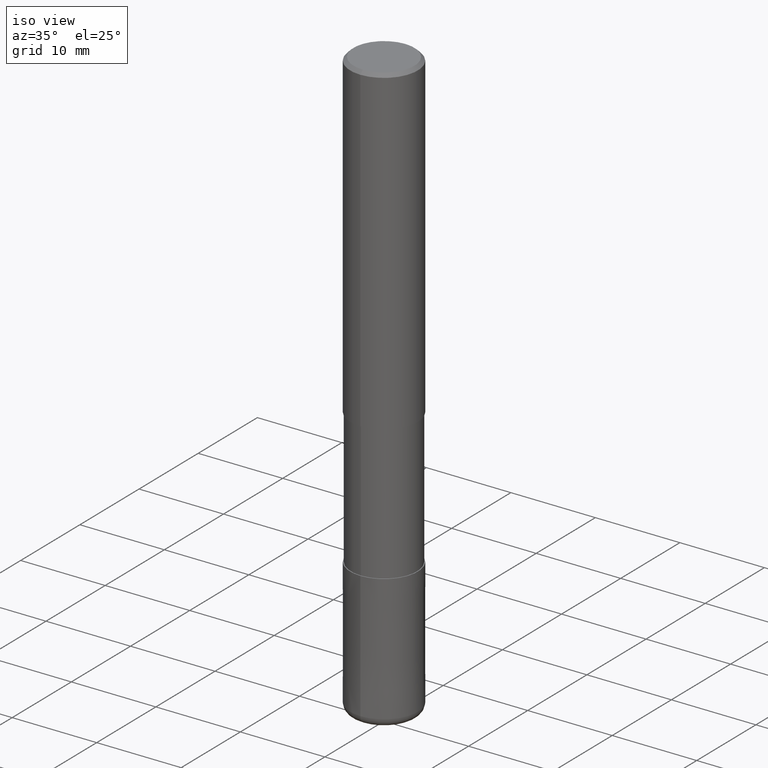
[diagram: clean part render]
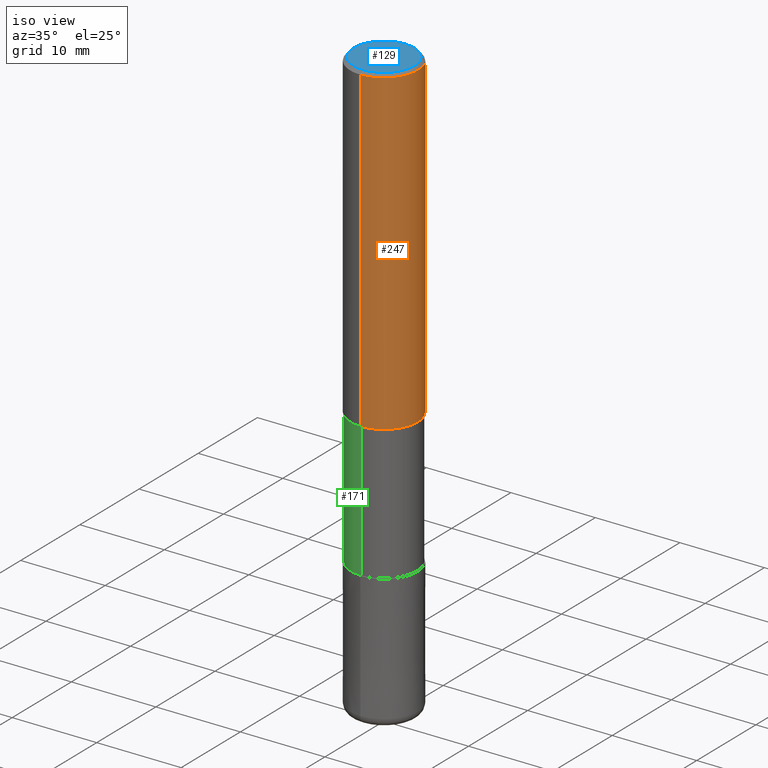
[diagram: same view with three faces highlighted in distinct colors, each labeled with its STEP entity id]
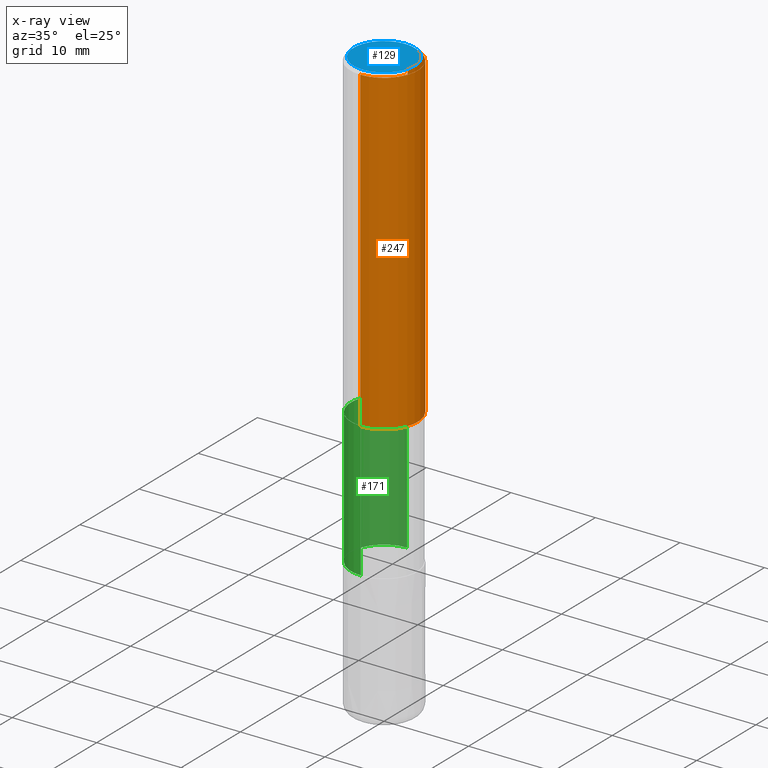
[diagram: x-ray of the same camera — body ghosted, the three highlighted faces saturated]
A machine part, iso view with three faces highlighted in distinct colors.
The next image is the same camera in x-ray (body ghosted, the three faces saturated) — at least one of them is partly hidden behind the body in this view.
Their STEP definitions:

[orange] entity #247 — the highlighted cylindrical surface (partial cylindrical patch) has radius 4 mm, axis along (-0, -0, 1).
#127=EDGE_CURVE('',#213,#243,#315,.T.);
#161=VERTEX_POINT('',#352);
#163=EDGE_CURVE('',#183,#161,#354,.T.);
#183=VERTEX_POINT('',#379);
#213=VERTEX_POINT('',#411);
#219=EDGE_CURVE('',#161,#243,#418,.T.);
#243=VERTEX_POINT('',#449);
#247=ADVANCED_FACE('',(#455),#456,.T.);
#263=EDGE_CURVE('',#213,#183,#472,.T.);
#315=CIRCLE('',#519,4.0);
#352=CARTESIAN_POINT('',(4.89842541528951E-016,-4.0,-38.0));
#354=CIRCLE('',#570,4.0);
#379=CARTESIAN_POINT('',(0.0,4.0,-38.0));
#411=CARTESIAN_POINT('',(0.0,4.0,-0.399999999999999));
#418=LINE('',#647,#648);
#449=CARTESIAN_POINT('',(4.89842541528951E-016,-4.0,-0.399999999999999));
#455=FACE_OUTER_BOUND('',#688,.T.);
#456=CYLINDRICAL_SURFACE('',#689,4.0);
#472=LINE('',#715,#716);
#519=AXIS2_PLACEMENT_3D('',#759,#760,#761);
#570=AXIS2_PLACEMENT_3D('',#807,#808,#809);
#647=CARTESIAN_POINT('',(4.89842541528951E-016,-4.0,-19.2));
#648=VECTOR('',#886,1.0);
#688=EDGE_LOOP('',(#943,#944,#945,#946));
#689=AXIS2_PLACEMENT_3D('',#947,#948,#949);
#715=CARTESIAN_POINT('',(-4.89842541528951E-016,4.0,-19.2));
#716=VECTOR('',#962,1.0);
#759=CARTESIAN_POINT('',(0.0,0.0,-0.399999999999999));
#760=DIRECTION('',(0.0,0.0,-1.0));
#761=DIRECTION('',(0.0,1.0,0.0));
#807=CARTESIAN_POINT('',(0.0,0.0,-38.0));
#808=DIRECTION('',(0.0,0.0,-1.0));
#809=DIRECTION('',(0.0,1.0,0.0));
#886=DIRECTION('',(-0.0,-0.0,1.0));
#943=ORIENTED_EDGE('',*,*,#263,.F.);
#944=ORIENTED_EDGE('',*,*,#127,.T.);
#945=ORIENTED_EDGE('',*,*,#219,.F.);
#946=ORIENTED_EDGE('',*,*,#163,.F.);
#947=CARTESIAN_POINT('',(0.0,0.0,-19.2));
#948=DIRECTION('',(-0.0,-0.0,1.0));
#949=DIRECTION('',(0.0,1.0,0.0));
#962=DIRECTION('',(0.0,0.0,-1.0));

[blue] entity #129 — the highlighted planar face has unit normal (-0, 0, 1).
#129=ADVANCED_FACE('',(#317),#318,.T.);
#131=EDGE_CURVE('',#137,#195,#320,.T.);
#137=VERTEX_POINT('',#326);
#195=VERTEX_POINT('',#392);
#269=EDGE_CURVE('',#195,#137,#479,.T.);
#317=FACE_OUTER_BOUND('',#521,.T.);
#318=PLANE('',#522);
#320=CIRCLE('',#525,3.6);
#326=CARTESIAN_POINT('',(4.40858287376056E-016,-3.6,0.0));
#392=CARTESIAN_POINT('',(0.0,3.6,0.0));
#479=CIRCLE('',#725,3.6);
#521=EDGE_LOOP('',(#763,#764));
#522=AXIS2_PLACEMENT_3D('',#765,#766,#767);
#525=AXIS2_PLACEMENT_3D('',#768,#769,#770);
#725=AXIS2_PLACEMENT_3D('',#974,#975,#976);
#763=ORIENTED_EDGE('',*,*,#269,.F.);
#764=ORIENTED_EDGE('',*,*,#131,.F.);
#765=CARTESIAN_POINT('',(0.0,1.8,0.0));
#766=DIRECTION('',(-0.0,0.0,1.0));
#767=DIRECTION('',(0.0,-1.0,0.0));
#768=CARTESIAN_POINT('',(0.0,0.0,0.0));
#769=DIRECTION('',(0.0,0.0,-1.0));
#770=DIRECTION('',(0.0,1.0,0.0));
#974=CARTESIAN_POINT('',(0.0,0.0,0.0));
#975=DIRECTION('',(0.0,0.0,-1.0));
#976=DIRECTION('',(0.0,1.0,0.0));

[green] entity #171 — the highlighted cylindrical surface (partial cylindrical patch) has radius 3.9 mm, axis along (-0, -0, 1).
#117=VERTEX_POINT('',#304);
#139=EDGE_CURVE('',#279,#201,#328,.T.);
#149=VERTEX_POINT('',#339);
#155=EDGE_CURVE('',#279,#149,#345,.T.);
#171=ADVANCED_FACE('',(#364),#365,.T.);
#201=VERTEX_POINT('',#398);
#215=EDGE_CURVE('',#149,#117,#413,.T.);
#251=EDGE_CURVE('',#117,#201,#460,.T.);
#279=VERTEX_POINT('',#490);
#304=CARTESIAN_POINT('',(0.0,3.89995,-38.0));
#328=CIRCLE('',#536,3.89995);
#339=CARTESIAN_POINT('',(4.77590354958958E-016,-3.89995,-38.0));
#345=LINE('',#558,#559);
#364=FACE_OUTER_BOUND('',#582,.T.);
#365=CYLINDRICAL_SURFACE('',#583,3.89995);
#398=CARTESIAN_POINT('',(0.0,3.89995,-54.0));
#413=CIRCLE('',#641,3.89995);
#460=LINE('',#695,#696);
#490=CARTESIAN_POINT('',(4.77590354958958E-016,-3.89995,-54.0));
#536=AXIS2_PLACEMENT_3D('',#777,#778,#779);
#558=CARTESIAN_POINT('',(4.77590354958958E-016,-3.89995,-46.0));
#559=VECTOR('',#795,1.0);
#582=EDGE_LOOP('',(#828,#829,#830,#831));
#583=AXIS2_PLACEMENT_3D('',#832,#833,#834);
#641=AXIS2_PLACEMENT_3D('',#875,#876,#877);
#695=CARTESIAN_POINT('',(-4.77590354958958E-016,3.89995,-46.0));
#696=VECTOR('',#953,1.0);
#777=CARTESIAN_POINT('',(0.0,0.0,-54.0));
#778=DIRECTION('',(0.0,0.0,-1.0));
#779=DIRECTION('',(0.0,1.0,0.0));
#795=DIRECTION('',(-0.0,-0.0,1.0));
#828=ORIENTED_EDGE('',*,*,#251,.T.);
#829=ORIENTED_EDGE('',*,*,#139,.F.);
#830=ORIENTED_EDGE('',*,*,#155,.T.);
#831=ORIENTED_EDGE('',*,*,#215,.T.);
#832=CARTESIAN_POINT('',(0.0,0.0,-46.0));
#833=DIRECTION('',(-0.0,-0.0,1.0));
#834=DIRECTION('',(0.0,1.0,0.0));
#875=CARTESIAN_POINT('',(0.0,0.0,-38.0));
#876=DIRECTION('',(0.0,0.0,-1.0));
#877=DIRECTION('',(0.0,1.0,0.0));
#953=DIRECTION('',(0.0,0.0,-1.0));